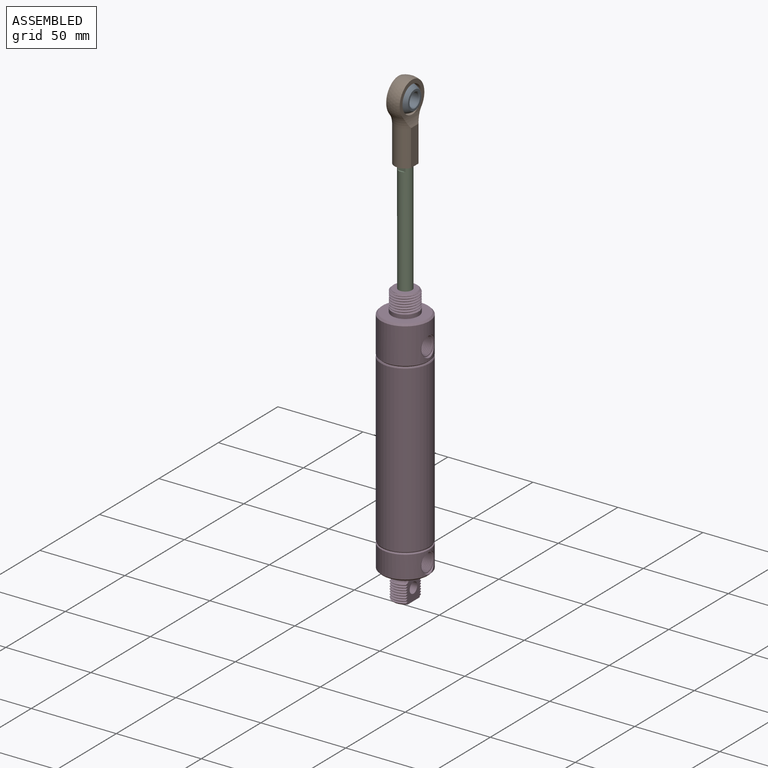
[diagram: assembled view]
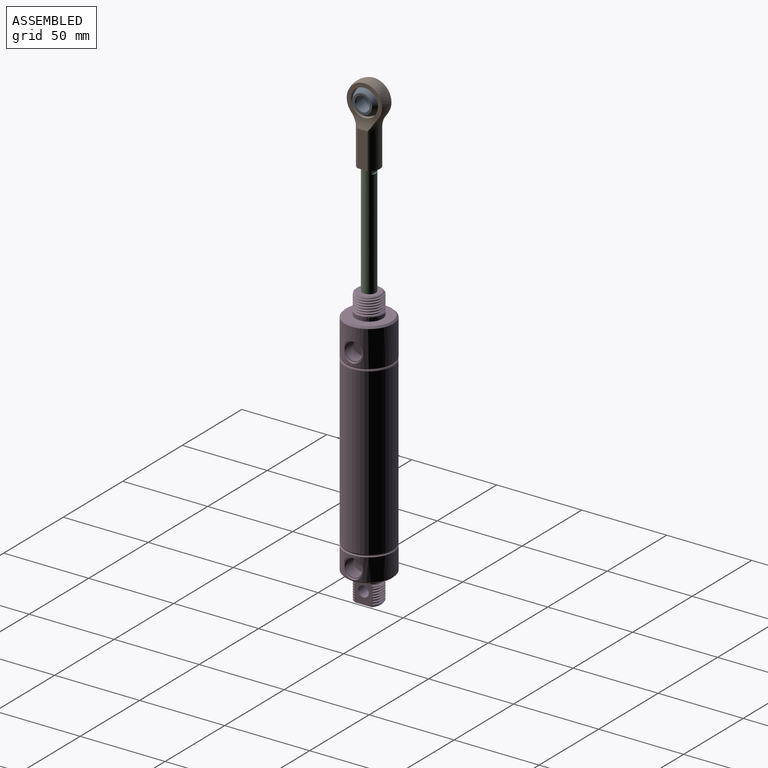
[diagram: assembled view, second angle]
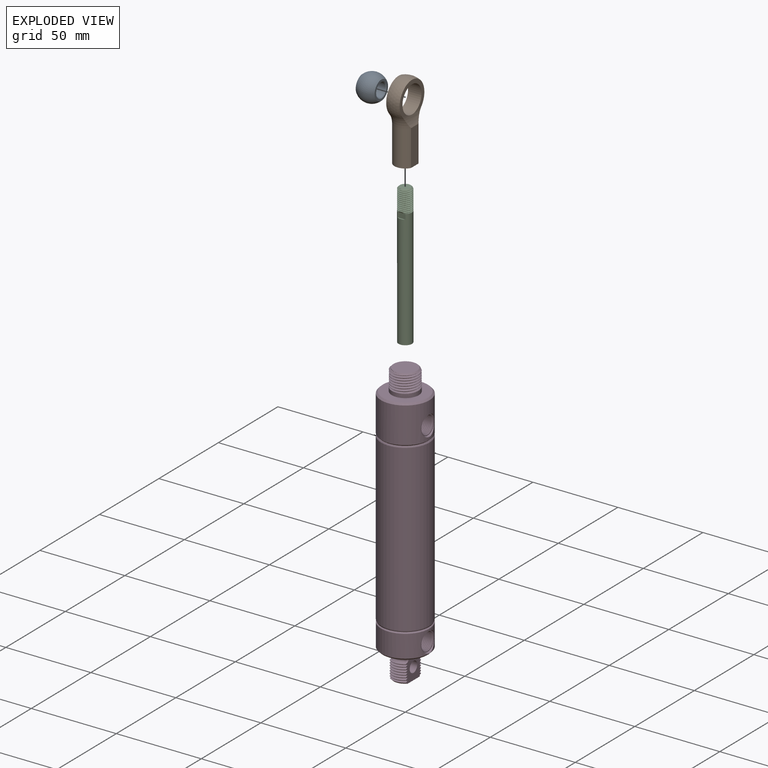
[diagram: exploded view]
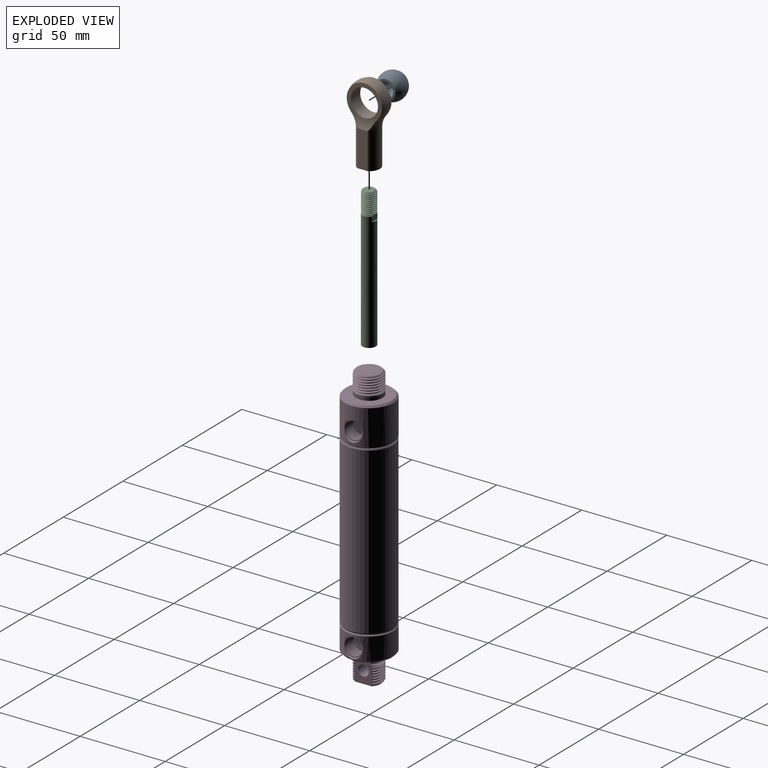
[diagram: exploded view, second angle]
ASSEMBLY  parts=4 mates=4
PART A: 6 faces, bbox 15.9x15.9x11.1 mm
  f0: cone r=4.37mm half-angle=45deg, axis (0,0,1), area 14.7mm2, adj f2,f4
  f1: cone r=4.37mm half-angle=45deg, axis (0,0,-1), area 14.7mm2, adj f2,f5
  f2: cylinder r=3.97mm len=10.32mm, axis (0,0,1), area 257.3mm2, adj f0,f1
  f3: sphere r=7.94mm, area 554.2mm2, adj f4,f5
  f4: plane 11.34x11.34mm, normal (0,0,1), area 41.1mm2, adj f0,f3
  f5: plane 11.34x11.34mm, normal (0,0,-1), area 41.1mm2, adj f1,f3
PART B: 19 faces, bbox 22.6x47x18.5 mm
  f0: cylinder r=8.02mm len=16.03mm, axis (0,0,1), area 399.8mm2, adj f15,f16,f17,f18
  f1: sphere r=11.11mm, area 397.9mm2, adj f2,f6,f15,f16,f17,f18
  f2: torus R=17.46mm, axis (0,-1,0), area 79.7mm2, adj f1,f8,f17,f18
  f3: cylinder r=3.98mm len=16.93mm, axis (0,-1,0), area 53.4mm2, adj f4,f9,f10,f12
  f4: cone r=4.5mm half-angle=45deg, axis (0,-1,0), area 29.4mm2, adj f3,f7,f10,f11,f12
  f5: cylinder r=6.35mm len=21.18mm, axis (0,1,0), area 286mm2, adj f6,f7,f13,f14
  f6: torus R=17.46mm, axis (0,-1,0), area 79.7mm2, adj f1,f5,f17,f18
  f7: plane 12.7x11.1mm, normal (0,-1,0), area 56.3mm2, adj f4,f5,f8,f13,f14
  f8: cylinder r=6.35mm len=21.18mm, axis (0,1,0), area 286mm2, adj f2,f7,f13,f14
  f9: plane 7.74x7.73mm, normal (0,-1,0), area 41.6mm2, adj f3,f10,f11,f12
  f10: bspline ~18.41x7.96mm, area 435.6mm2, adj f3,f4,f9,f11
  f11: cylinder r=3.29mm len=16.25mm, axis (0,1,0), area 41.5mm2, adj f4,f9,f10,f12
  f12: bspline ~17.87x7.95mm, area 283.3mm2, adj f3,f4,f9,f11
  f13: plane 21.18x6.17mm, normal (0,0,1), area 130.7mm2, adj f5,f7,f8,f17
  f14: plane 21.18x6.17mm, normal (0,0,-1), area 130.7mm2, adj f5,f7,f8,f18
  f15: plane 20.76x17.04mm, normal (0,0,1), area 103.6mm2, adj f0,f1,f17
  f16: plane 20.76x17.04mm, normal (0,0,-1), area 103.6mm2, adj f0,f1,f18
  f17: cylinder r=16.67mm len=15.92mm, axis (-1,0,0), area 70.9mm2, adj f0,f1,f2,f6,f13,f15
  f18: cylinder r=16.67mm len=15.92mm, axis (1,0,0), area 70.9mm2, adj f0,f1,f2,f6,f14,f16
PART C: 20 faces, bbox 83.9x9x9 mm
  f0: cone r=3.17mm half-angle=45deg, axis (1,0,0), area 13.9mm2, adj f2,f3,f8,f9,f10
  f1: cylinder r=3.96mm len=69.85mm, axis (-1,0,0), area 1708mm2, adj f4,f5,f6,f12,f13,f14,f15,f16
  f2: cylinder r=3.97mm len=11.43mm, axis (-1,0,0), area 35.4mm2, adj f0,f3,f9,f18,f19
  f3: bspline ~12.95x7.94mm, area 205.3mm2, adj f0,f2,f10,f18,f19
  f4: plane 6.59x3.37mm, normal (-1,0,0), area 3.5mm2, adj f1,f9,f10,f13,f15
  f5: plane 5.91x2.79mm, normal (-1,0,0), area 1.8mm2, adj f1,f11,f15
  f6: plane 0.49x0.44mm, normal (1,0,0), area 0mm2, adj f1,f7,f11,f17
  f7: cylinder r=3.97mm len=6.82mm, axis (-1,0,0), area 1.1mm2, adj f6,f9,f11,f17,f19
  f8: plane 6.35x6.35mm, normal (-1,0,0), area 31.7mm2, adj f0
  f9: bspline ~13.1x7.94mm, area 209mm2, adj f0,f2,f4,f7,f10,f17,f19
  f10: cylinder r=3.28mm len=12.59mm, axis (1,0,0), area 22.6mm2, adj f0,f3,f4,f9,f19
  f11: bspline ~7.27x3.51mm, area 2.3mm2, adj f5,f6,f7,f19
  f12: plane 7.92x7.92mm, normal (1,0,0), area 49.3mm2, adj f1
  f13: plane 4.74x3.05mm, normal (0,1,0), area 14.5mm2, adj f1,f4,f14,f17
  f14: plane 4.74x0.79mm, normal (-1,0,0), area 2.5mm2, adj f1,f13
  f15: plane 4.74x3.05mm, normal (0,-1,0), area 14.5mm2, adj f1,f4,f5,f16,f19
  f16: plane 4.74x0.79mm, normal (-1,0,0), area 2.5mm2, adj f1,f15
  f17: plane 5.5x1.36mm, normal (0.64,0.77,0), area 1.3mm2, adj f6,f7,f9,f13
  f18: plane 0.86x0.15mm, normal (0.64,0.77,0), area 0mm2, adj f2,f3
  f19: plane 4.27x1.23mm, normal (0.64,-0.77,0), area 2.4mm2, adj f2,f3,f7,f9,f10,f11,f15
PART D: 127 faces, bbox 166.2x29x29 mm
  f0: torus R=7.56mm, axis (-1,0,0), area 33mm2, adj f45,f58,f59,f102,f104,f105
  f1: torus R=7.56mm, axis (-1,0,0), area 33.1mm2, adj f27,f28,f39,f101,f104,f105
  f2: cone r=7.94mm half-angle=45deg, axis (1,0,0), area 38.8mm2, adj f10,f122,f123,f124,f125
  f3: cylinder r=7.94mm len=15.88mm, axis (1,0,0), area 119mm2, adj f4,f108,f122,f124,f126
  f4: cylinder r=7.94mm len=15.88mm, axis (1,0,0), area 8.8mm2, adj f3,f5,f122,f124
  f5: cylinder r=7.94mm len=15.88mm, axis (1,0,0), area 8.8mm2, adj f4,f6,f122,f124
  f6: cylinder r=7.94mm len=15.88mm, axis (1,0,0), area 8.8mm2, adj f5,f7,f122,f124
  f7: cylinder r=7.94mm len=15.88mm, axis (1,0,0), area 8.8mm2, adj f6,f8,f122,f124
  f8: cylinder r=7.94mm len=15.88mm, axis (1,0,0), area 8.8mm2, adj f7,f9,f122,f124
  f9: cylinder r=7.94mm len=15.88mm, axis (1,0,0), area 8.8mm2, adj f8,f10,f122,f124
  f10: cylinder r=7.94mm len=5.61mm, axis (1,0,0), area 0.5mm2, adj f2,f9,f124
  f11: cylinder r=5.14mm len=10.29mm, axis (0,0,1), area 26.7mm2, adj f113,f118,f120,f121
  f12: cylinder r=5.14mm len=10.29mm, axis (0,0,1), area 26.7mm2, adj f111,f114,f116,f117
  f13: cone r=5.66mm half-angle=15deg, axis (0,0,1), area 11mm2, adj f23,f113
  f14: cone r=5.66mm half-angle=15deg, axis (0,0,1), area 11mm2, adj f22,f111
  f15: cone r=14.22mm half-angle=45deg, axis (-1,0,0), area 123.8mm2, adj f22,f106
  f16: cone r=13.21mm half-angle=45deg, axis (1,0,0), area 123.8mm2, adj f23,f108
  f17: cone r=13.51mm half-angle=45deg, axis (1,0,0), area 87.6mm2, adj f22,f109
  f18: cone r=14.22mm half-angle=26.6deg, axis (-1,0,0), area 70.2mm2, adj f21,f109
  f19: cone r=14.22mm half-angle=45deg, axis (-1,0,0), area 87.6mm2, adj f23,f107
  f20: cone r=13.87mm half-angle=26.6deg, axis (1,0,0), area 70.2mm2, adj f21,f107
  f21: cylinder r=14.22mm len=97.48mm, axis (-1,0,0), area 8711.9mm2, adj f18,f20
  f22: cylinder r=14.22mm len=28.45mm, axis (-1,0,0), area 1091.6mm2, adj f14,f15,f17,f110
  f23: cylinder r=14.22mm len=28.45mm, axis (-1,0,0), area 1778.9mm2, adj f13,f16,f19,f112
  f24: cone r=5.14mm half-angle=45deg, axis (0,0,1), area 13.3mm2, adj f111,f114,f115,f116
  f25: cone r=5.14mm half-angle=45deg, axis (0,0,1), area 13.3mm2, adj f113,f118,f119,f120
  f26: cylinder r=3.17mm len=9.65mm, axis (0,0,1), area 192.5mm2, adj f104,f105
  f27: cylinder r=13.76mm len=0.37mm, axis (-0.5,-0.67,-0.55), area 0mm2, adj f1,f28,f105
  f28: cylinder r=7.02mm len=5.48mm, axis (-1,0,0), area 0.6mm2, adj f1,f27,f39,f105
  f29: cylinder r=7.94mm len=9.65mm, axis (1,0,0), area 1.8mm2, adj f35,f37,f104,f105
  f30: cylinder r=7.02mm len=9.65mm, axis (-1,0,0), area 1.9mm2, adj f33,f36,f104,f105
  f31: cylinder r=7.02mm len=9.65mm, axis (-1,0,0), area 1.9mm2, adj f34,f37,f104,f105
  f32: cylinder r=7.02mm len=9.65mm, axis (-1,0,0), area 1.9mm2, adj f35,f77,f104,f105
  f33: bspline ~11.23x2.97mm, area 9.8mm2, adj f30,f73,f104,f105
  f34: bspline ~10.91x2.83mm, area 11.2mm2, adj f31,f40,f104,f105
  f35: bspline ~10.91x2.83mm, area 11.2mm2, adj f29,f32,f104,f105
  f36: bspline ~11.23x2.97mm, area 11.2mm2, adj f30,f40,f104,f105
  f37: bspline ~11.23x2.97mm, area 11.2mm2, adj f29,f31,f104,f105
  f38: cylinder r=7.94mm len=9.65mm, axis (1,0,0), area 1.8mm2, adj f39,f62,f104,f105
  f39: bspline ~11.23x2.97mm, area 9.9mm2, adj f1,f28,f38,f104,f105
  f40: cylinder r=7.94mm len=9.65mm, axis (1,0,0), area 1.8mm2, adj f34,f36,f104,f105
  f41: cone r=6.88mm half-angle=45deg, axis (-1,0,0), area 7.5mm2, adj f52,f74,f104,f105
  f42: plane 9.72x2.8mm, normal (1,0,0), area 9.2mm2, adj f58,f59,f60,f103,f104,f105
  f43: cylinder r=7.94mm len=9.65mm, axis (1,0,0), area 23.7mm2, adj f101,f104,f105,f106
  f44: cylinder r=7.94mm len=1.02mm, axis (1,0,0), area 0mm2, adj f45,f102,f104
  f45: bspline ~10.91x2.83mm, area 8.7mm2, adj f0,f44,f46,f102,f104,f105
  f46: cylinder r=7.02mm len=9.65mm, axis (-1,0,0), area 1.9mm2, adj f45,f63,f104,f105
  f47: cylinder r=7.94mm len=9.65mm, axis (1,0,0), area 1.8mm2, adj f57,f80,f104,f105
  f48: cylinder r=7.94mm len=9.65mm, axis (1,0,0), area 1.8mm2, adj f54,f56,f104,f105
  f49: cylinder r=7.02mm len=9.65mm, axis (-1,0,0), area 1.9mm2, adj f52,f55,f104,f105
  f50: cylinder r=7.02mm len=9.65mm, axis (-1,0,0), area 1.9mm2, adj f53,f56,f104,f105
  f51: cylinder r=7.02mm len=9.65mm, axis (-1,0,0), area 1.9mm2, adj f54,f57,f104,f105
  f52: bspline ~10.65x2.56mm, area 4.4mm2, adj f41,f49,f104,f105
  f53: bspline ~11.23x2.97mm, area 11.2mm2, adj f50,f72,f104,f105
  f54: bspline ~11.23x2.97mm, area 11.2mm2, adj f48,f51,f104,f105
  f55: bspline ~11.23x2.97mm, area 11.2mm2, adj f49,f72,f104,f105
  f56: bspline ~11.23x2.97mm, area 11.2mm2, adj f48,f50,f104,f105
  f57: bspline ~10.91x2.83mm, area 11.2mm2, adj f47,f51,f104,f105
  f58: cylinder r=7.02mm len=6.59mm, axis (-1,0,0), area 0.6mm2, adj f0,f42,f59,f60,f104
  f59: bspline ~8.4x2.33mm, area 0.7mm2, adj f0,f42,f58,f105
  f60: cylinder r=13.89mm len=1.35mm, axis (-0.5,0.7,0.51), area 0.1mm2, adj f42,f58,f104
  f61: cylinder r=7.94mm len=9.65mm, axis (1,0,0), area 1.8mm2, adj f63,f99,f104,f105
  f62: bspline ~10.91x2.83mm, area 11.2mm2, adj f38,f64,f104,f105
  f63: bspline ~10.91x2.83mm, area 11.2mm2, adj f46,f61,f104,f105
  f64: cylinder r=7.02mm len=9.65mm, axis (-1,0,0), area 1.9mm2, adj f62,f100,f104,f105
  f65: cylinder r=7.94mm len=9.65mm, axis (1,0,0), area 1.8mm2, adj f77,f83,f104,f105
  f66: cylinder r=7.94mm len=9.65mm, axis (1,0,0), area 1.8mm2, adj f81,f86,f104,f105
  f67: cylinder r=7.94mm len=9.65mm, axis (1,0,0), area 1.8mm2, adj f84,f89,f104,f105
  f68: cylinder r=7.94mm len=9.65mm, axis (1,0,0), area 1.8mm2, adj f87,f92,f104,f105
  f69: cylinder r=7.94mm len=9.65mm, axis (1,0,0), area 1.8mm2, adj f90,f95,f104,f105
  f70: cylinder r=7.94mm len=9.65mm, axis (1,0,0), area 1.8mm2, adj f93,f98,f104,f105
  f71: cylinder r=7.94mm len=9.65mm, axis (1,0,0), area 1.8mm2, adj f96,f100,f104,f105
  f72: cylinder r=7.94mm len=9.65mm, axis (1,0,0), area 1.8mm2, adj f53,f55,f104,f105
  f73: cone r=6.88mm half-angle=45deg, axis (-1,0,0), area 12mm2, adj f33,f74,f75,f76,f78,f104,f105
  f74: plane 13.76x9.65mm, normal (1,0,0), area 120.9mm2, adj f41,f73,f104,f105
  f75: cylinder r=7.02mm len=5.93mm, axis (-1,0,0), area 0.6mm2, adj f73,f76,f78,f104
  f76: cylinder r=13.8mm len=0.78mm, axis (-0.5,0.71,-0.5), area 0mm2, adj f73,f75,f104
  f77: bspline ~11.23x2.97mm, area 11.2mm2, adj f32,f65,f104,f105
  f78: bspline ~7.23x2.56mm, area 1.7mm2, adj f73,f75,f104
  f79: cylinder r=7.02mm len=9.65mm, axis (-1,0,0), area 1.9mm2, adj f80,f81,f104,f105
  f80: bspline ~11.23x2.97mm, area 11.2mm2, adj f47,f79,f104,f105
  f81: bspline ~10.91x2.83mm, area 11.2mm2, adj f66,f79,f104,f105
  f82: cylinder r=7.02mm len=9.65mm, axis (-1,0,0), area 1.9mm2, adj f83,f84,f104,f105
  f83: bspline ~11.23x2.97mm, area 11.2mm2, adj f65,f82,f104,f105
  f84: bspline ~11.23x2.97mm, area 11.2mm2, adj f67,f82,f104,f105
  f85: cylinder r=7.02mm len=9.65mm, axis (-1,0,0), area 1.9mm2, adj f86,f87,f104,f105
  f86: bspline ~11.23x2.97mm, area 11.2mm2, adj f66,f85,f104,f105
  f87: bspline ~11.23x2.97mm, area 11.2mm2, adj f68,f85,f104,f105
  f88: cylinder r=7.02mm len=9.65mm, axis (-1,0,0), area 1.9mm2, adj f89,f90,f104,f105
  f89: bspline ~11.23x2.97mm, area 11.2mm2, adj f67,f88,f104,f105
  f90: bspline ~11.23x2.97mm, area 11.2mm2, adj f69,f88,f104,f105
  f91: cylinder r=7.02mm len=9.65mm, axis (-1,0,0), area 1.9mm2, adj f92,f93,f104,f105
  f92: bspline ~11.23x2.97mm, area 11.2mm2, adj f68,f91,f104,f105
  f93: bspline ~11.23x2.97mm, area 11.2mm2, adj f70,f91,f104,f105
  f94: cylinder r=7.02mm len=9.65mm, axis (-1,0,0), area 1.9mm2, adj f95,f96,f104,f105
  f95: bspline ~11.23x2.97mm, area 11.2mm2, adj f69,f94,f104,f105
  f96: bspline ~11.23x2.97mm, area 11.2mm2, adj f71,f94,f104,f105
  f97: cylinder r=7.02mm len=9.65mm, axis (-1,0,0), area 1.9mm2, adj f98,f99,f104,f105
  f98: bspline ~10.91x2.83mm, area 11.2mm2, adj f70,f97,f104,f105
  f99: bspline ~11.23x2.97mm, area 11.2mm2, adj f61,f97,f104,f105
  f100: bspline ~11.23x2.97mm, area 11.2mm2, adj f64,f71,f104,f105
  f101: plane 9.65x2.12mm, normal (1,0,0), area 4mm2, adj f1,f43,f104,f105
  f102: plane 8.39x2.07mm, normal (-1,0,0), area 1.9mm2, adj f0,f44,f45,f104
  f103: cylinder r=7.94mm len=9.65mm, axis (1,0,0), area 23.7mm2, adj f42,f104,f105,f106
  f104: plane 16.05x12.91mm, normal (0,0,1), area 145.2mm2, adj f0,f1,f26,f29,f30,f31,f32,f33
  f105: plane 16.05x12.91mm, normal (0,0,-1), area 144.8mm2, adj f0,f1,f26,f27,f28,f29,f30,f31
  f106: plane 26.42x26.42mm, normal (1,0,0), area 404.9mm2, adj f15,f43,f103,f104,f105
  f107: plane 27.74x27.74mm, normal (-1,0,0), area 30.6mm2, adj f19,f20
  f108: plane 26.42x26.42mm, normal (-1,0,0), area 350.1mm2, adj f3,f16
  f109: plane 27.74x27.74mm, normal (1,0,0), area 30.6mm2, adj f17,f18
  f110: cone r=5.66mm half-angle=15deg, axis (0,0,1), area 0mm2, adj f22,f111
  f111: plane 11.32x11.32mm, normal (0,0,1), area 17.5mm2, adj f12,f14,f24,f110
  f112: cone r=5.66mm half-angle=15deg, axis (0,0,1), area 11mm2, adj f23,f113
  f113: plane 11.32x11.32mm, normal (0,0,1), area 17.5mm2, adj f11,f13,f25,f112
  f114: bspline ~10.29x10.29mm, area 137.8mm2, adj f12,f24,f115,f117
  f115: cylinder r=4.53mm len=9.07mm, axis (0,0,-1), area 21.3mm2, adj f24,f114,f116,f117
  f116: bspline ~10.29x10.29mm, area 143.6mm2, adj f12,f24,f115,f117
  f117: plane 10.11x10.07mm, normal (0,0,1), area 73.7mm2, adj f12,f114,f115,f116
  f118: bspline ~10.29x10.29mm, area 137.8mm2, adj f11,f25,f119,f121
  f119: cylinder r=4.53mm len=9.07mm, axis (0,0,-1), area 21.3mm2, adj f25,f118,f120,f121
  f120: bspline ~10.29x10.29mm, area 143.6mm2, adj f11,f25,f119,f121
  f121: plane 10.11x10.07mm, normal (0,0,1), area 73.7mm2, adj f11,f118,f119,f120
  f122: bspline ~15.86x15.85mm, area 345.7mm2, adj f2,f3,f4,f5,f6,f7,f8,f9
  f123: cylinder r=7.02mm len=14.04mm, axis (-1,0,0), area 56.4mm2, adj f2,f122,f124,f126
  f124: bspline ~15.88x15.88mm, area 345.1mm2, adj f2,f3,f4,f5,f6,f7,f8,f9
  f125: plane 13.76x13.76mm, normal (-1,0,0), area 148.7mm2, adj f2
  f126: plane 16.45x16.45mm, normal (-1,0,0), area 21.8mm2, adj f3,f122,f123,f124
PLACE A rot(axis=(0,1,0),90deg) t=(0,-17.46,266.57)mm
PLACE B rot(axis=(0.58,-0.58,-0.58),120deg) t=(0,0,249.11)mm
PLACE C rot(axis=(0,1,0),90deg) t=(0,0,153.92)mm
PLACE D rot(axis=(0,1,0),90deg) t=(0,0,90.42)mm
MATE parallel A.f0 <-> B.f16  axis (1,0,0) through (0,0,266.57)mm
MATE ball A.f0 <-> B.f0  axis (1,0,0) through (0,0,266.57)mm
MATE fastened B.f2 <-> C.f0  axis (0,0,-1) through (0,0,231.65)mm
MATE cylindrical C.f0 <-> D.f2  axis (0,0,1) through (0,0,228.6)mm
